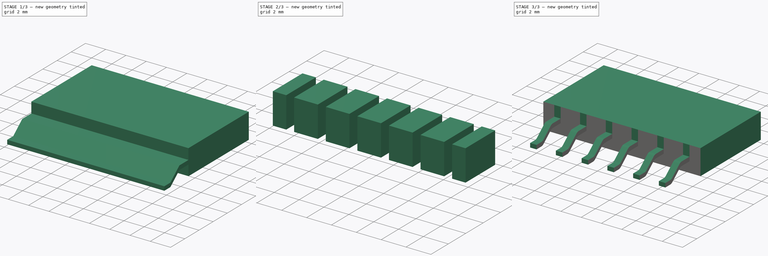
[diagram: build sequence overview — one tinted view per stage of 3, left to right]
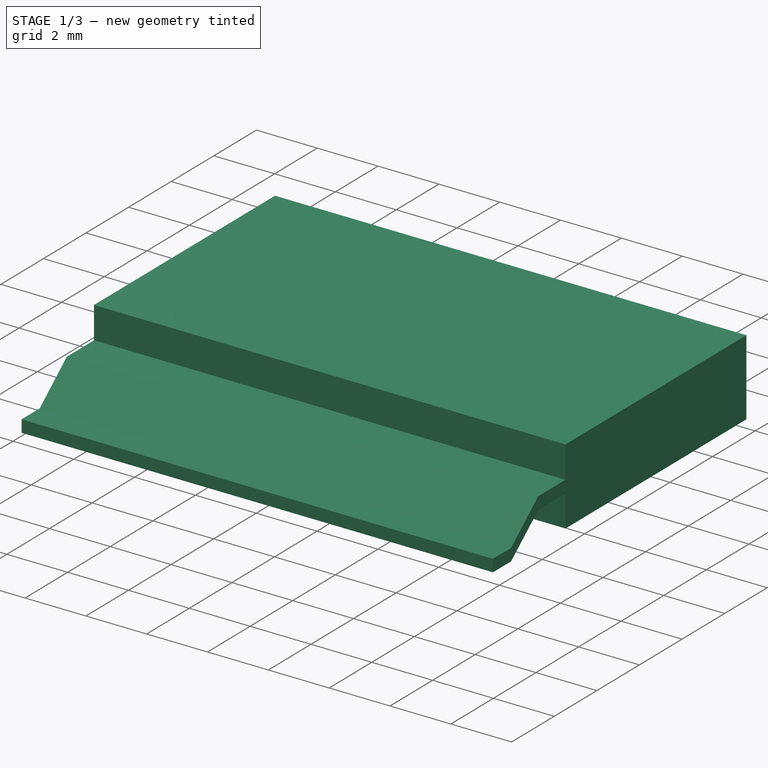
[diagram: stage 1 of 3 — iso view after this stage's code; geometry added in this stage tinted green]
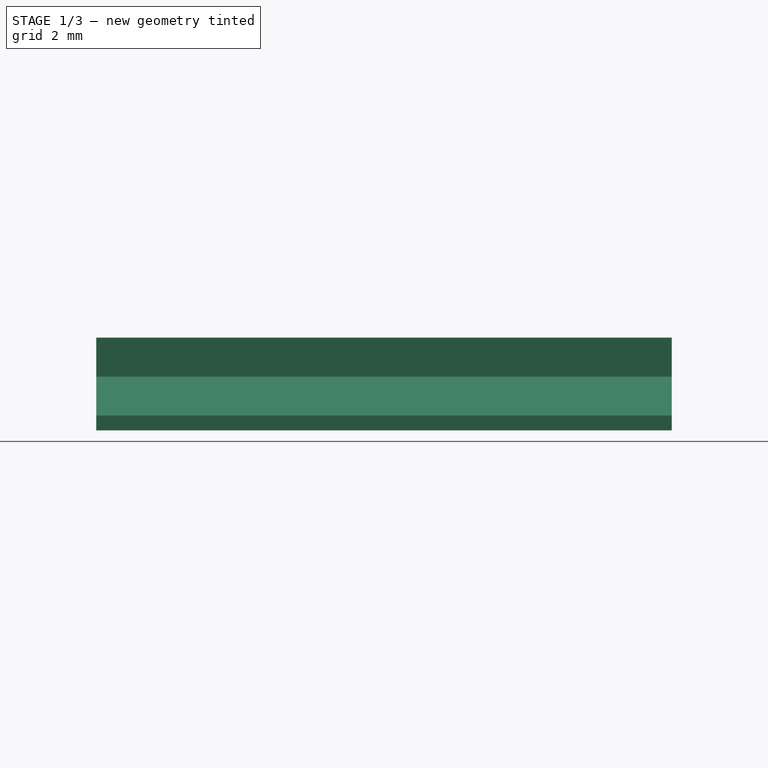
[diagram: stage 1 of 3 — front view after this stage's code; geometry added in this stage tinted green]
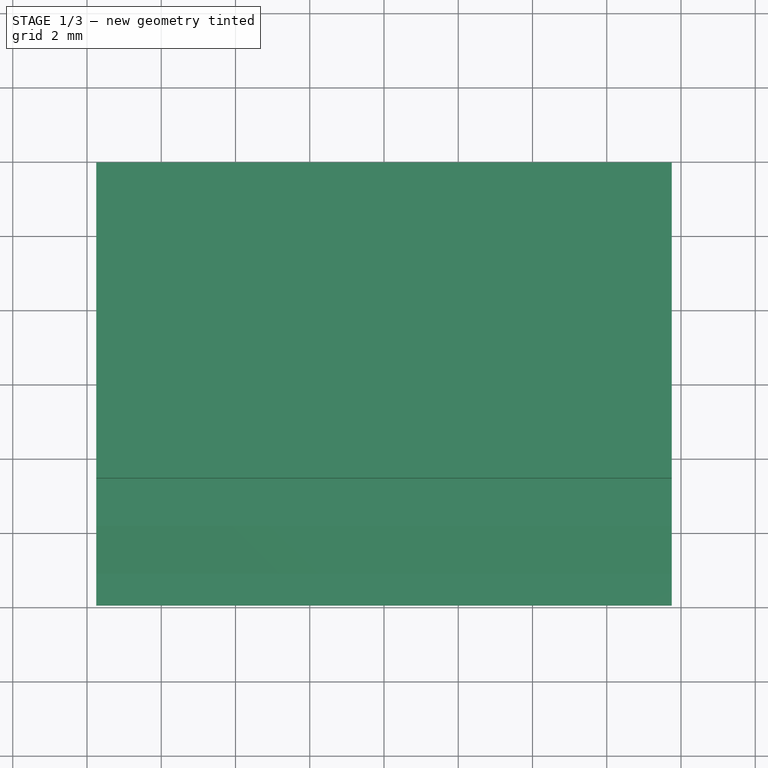
[diagram: stage 1 of 3 — top view after this stage's code; geometry added in this stage tinted green]
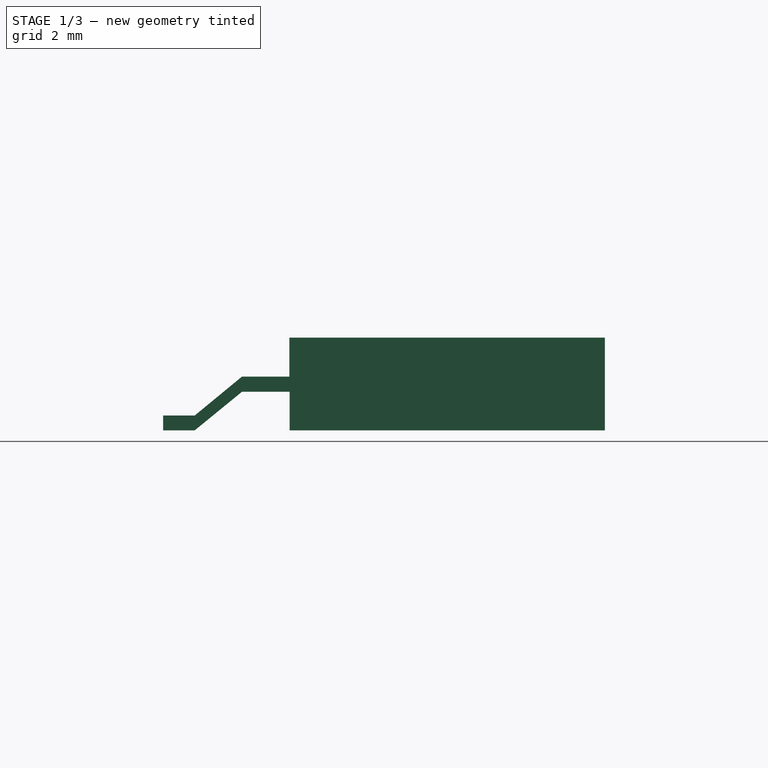
[diagram: stage 1 of 3 — right view after this stage's code; geometry added in this stage tinted green]
FCSTD DOCUMENT  (FreeCAD 0.17R13522 (Git))
Label: Header
License: All rights reserved
LicenseURL: http://en.wikipedia.org/wiki/All_rights_reserved
objects: Sketcher::SketchObject×4, Part::Extrusion×4, Part::Cut×3, Part::Fillet×1
note: 12 computed .brp shape members not serialized (recipe doc carries the construction recipe); baked Part::Feature solids carry a one-line shape summary decoded from their .brp

FEATURE [Sketcher::SketchObject] Sketch
  sketch-geometry (4):
    g0: LineSegment StartX=-7.75 StartY=5.95 StartZ=0 EndX=7.75 EndY=5.95 EndZ=0
    g1: LineSegment StartX=7.75 StartY=5.95 StartZ=0 EndX=7.75 EndY=-5.95 EndZ=0
    g2: LineSegment StartX=7.75 StartY=-5.95 StartZ=0 EndX=-7.75 EndY=-5.95 EndZ=0
    g3: LineSegment StartX=-7.75 StartY=-5.95 StartZ=0 EndX=-7.75 EndY=5.95 EndZ=0
  constraints (12):
    c: Coincident(g0,g1)
    c: Coincident(g1,g2)
    c: Coincident(g2,g3)
    c: Coincident(g3,g0)
    c: Horizontal(g0)
    c: Horizontal(g2)
    c: Vertical(g1)
    c: Vertical(g3)
    c: Distance(g0) = 15.5
    c: Distance(g3) = 11.9
    c: DistanceY(g-1,g0) = 5.95
    c: DistanceX(g-1,g1) = 7.75
FEATURE [Part::Extrusion] Extrude
  Base = -> Sketch
  Dir = (0,0,1)
  DirMode = 2
  FaceMakerClass = Part::FaceMakerBullseye
  LengthFwd = 2.5
  LengthRev = 0
  Solid = true
  Symmetric = false
FEATURE [Sketcher::SketchObject] Sketch001
  MapMode = 5
  Placement = pos=(7.75,0,0) rot=(0.57735,0.57735,0.57735;2.0944rad)
  Support = -> [Extrude]
  sketch-geometry (10):
    g0: LineSegment StartX=-2.55 StartY=2.5 StartZ=0 EndX=-5.95 EndY=2.5 EndZ=0
    g1: LineSegment StartX=-5.1 StartY=0.4 StartZ=0 EndX=-5.95 EndY=0.4 EndZ=0
    g2: LineSegment StartX=-2.54297 StartY=1.04065 StartZ=0 EndX=-3.825 EndY=1.04065 EndZ=0
    g3: LineSegment StartX=-3.825 StartY=1.45 StartZ=0 EndX=-2.55 EndY=1.45 EndZ=0
    g4: LineSegment StartX=-5.1 StartY=0.4 StartZ=0 EndX=-3.825 EndY=1.45 EndZ=0
    g5: LineSegment StartX=-3.825 StartY=1.04065 StartZ=0 EndX=-5.1 EndY=0 EndZ=0
    g6: LineSegment StartX=-5.95 StartY=2.5 StartZ=0 EndX=-5.95 EndY=0.4 EndZ=0
    g7: LineSegment StartX=-5.1 StartY=0 StartZ=0 EndX=-2.54297 EndY=0 EndZ=0
    g8: LineSegment StartX=-2.54297 StartY=1.04065 StartZ=0 EndX=-2.54297 EndY=0 EndZ=0
    g9: LineSegment StartX=-2.55 StartY=2.5 StartZ=0 EndX=-2.55 EndY=1.45 EndZ=0
  constraints (19):
    c: Horizontal(g0)
    c: Distance(g0) = 3.4
    c: Horizontal(g1)
    c: Distance(g1) = 0.85
    c: Horizontal(g2)
    c: Horizontal(g3)
    c: Distance(g3) = 1.275
    c: Coincident(g5,g2)
    c: Coincident(g6,g0)
    c: Coincident(g6,g1)
    c: Vertical(g6)
    c: Coincident(g7,g5)
    c: Horizontal(g7)
    c: Coincident(g8,g2)
    c: Coincident(g8,g7)
    c: Vertical(g8)
    c: Coincident(g9,g0)
    c: Coincident(g9,g3)
    c: Vertical(g9)
FEATURE [Part::Extrusion] Extrude001
  Base = -> Sketch001
  Dir = (1,0,0)
  DirMode = 2
  FaceMakerClass = Part::FaceMakerBullseye
  LengthFwd = 15.5
  LengthRev = 0
  Reversed = true
  Solid = true
  Symmetric = false
FEATURE [Part::Cut] Cut
  Base = -> Extrude
  Tool = -> Extrude001
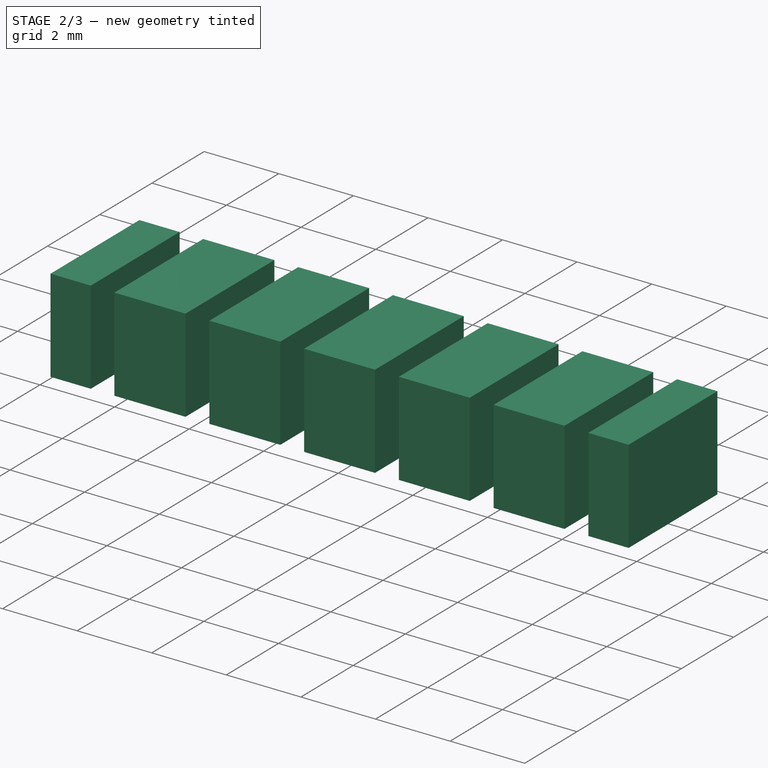
[diagram: stage 2 of 3 — iso view after this stage's code; geometry added in this stage tinted green]
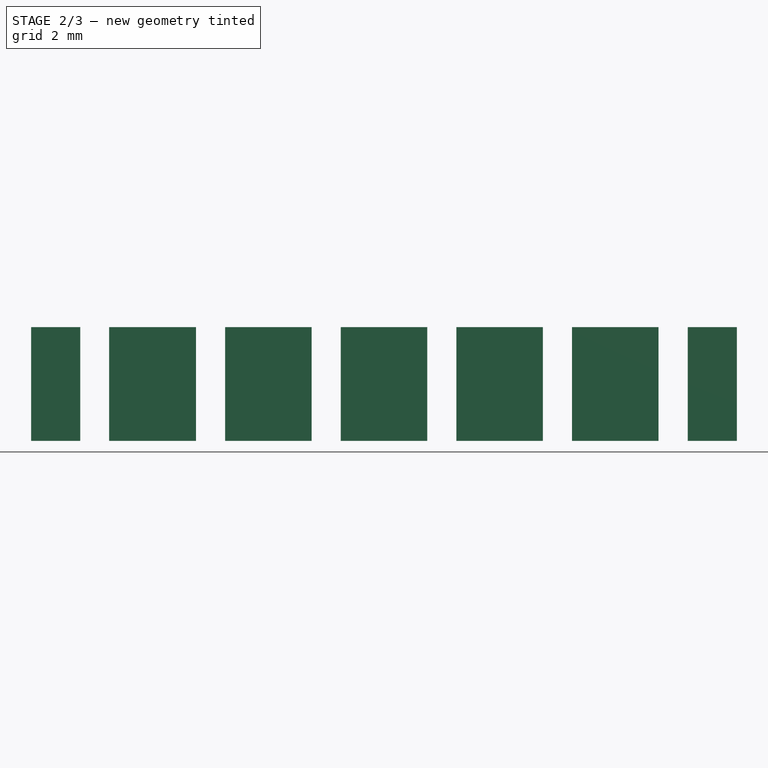
[diagram: stage 2 of 3 — front view after this stage's code; geometry added in this stage tinted green]
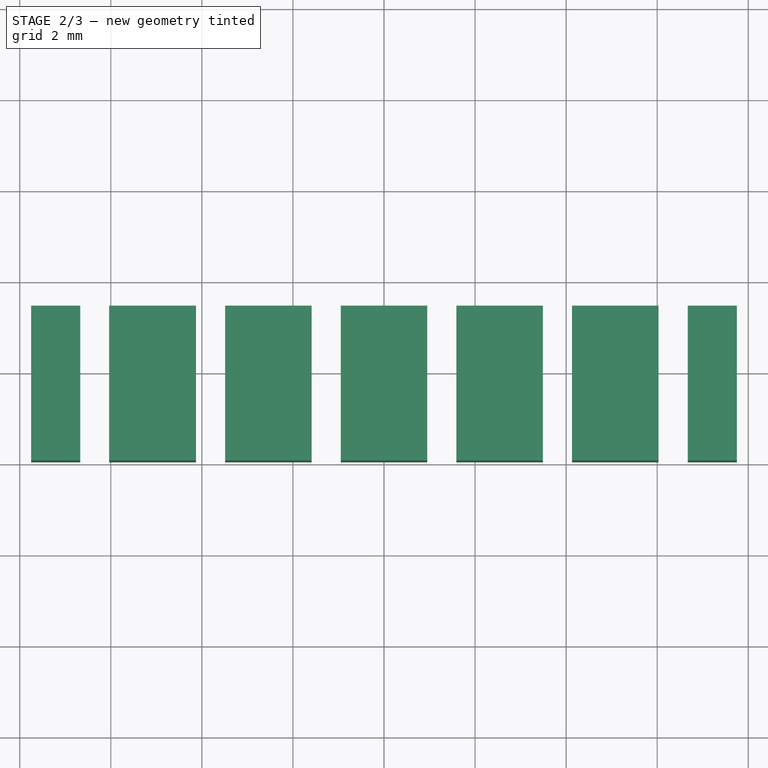
[diagram: stage 2 of 3 — top view after this stage's code; geometry added in this stage tinted green]
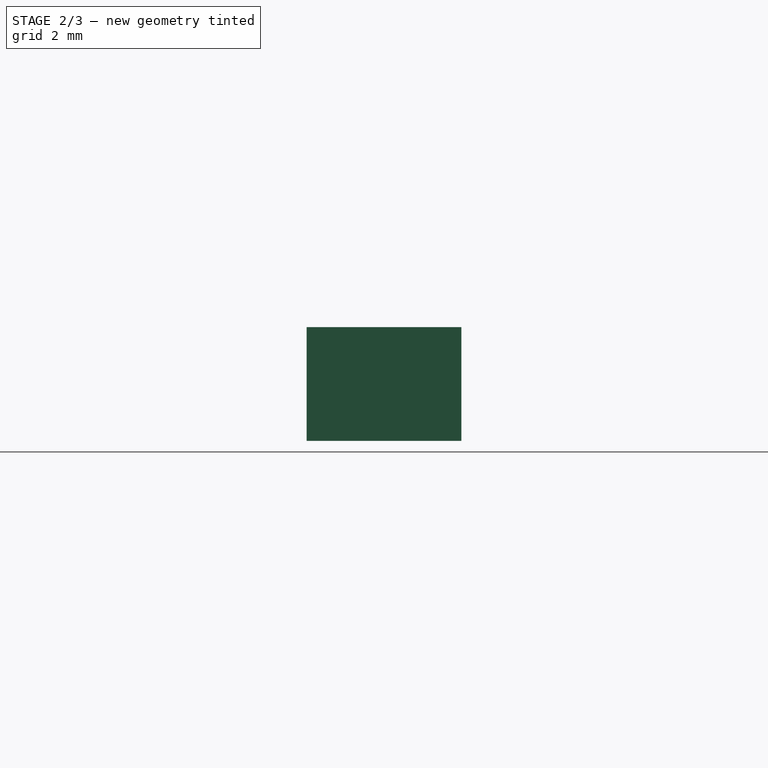
[diagram: stage 2 of 3 — right view after this stage's code; geometry added in this stage tinted green]
FEATURE [Part::Fillet] Fillet
  Base = -> Cut
  Edges = 4 edges r=0.5: [Edge29,Edge31,Edge34,Edge35]
FEATURE [Sketcher::SketchObject] Sketch002
  MapMode = 5
  Placement = pos=(0,0,2.5) rot=(0,0,1;0rad)
  Support = -> [Fillet]
  sketch-geometry (28):
    g0: LineSegment StartX=-1.59 StartY=-2.55 StartZ=0 EndX=-1.59 EndY=-5.95 EndZ=0
    g1: LineSegment StartX=-0.95 StartY=-5.95 StartZ=0 EndX=-0.95 EndY=-2.55 EndZ=0
    g2: LineSegment StartX=-4.13 StartY=-2.55 StartZ=0 EndX=-4.13 EndY=-5.95 EndZ=0
    g3: LineSegment StartX=-3.49 StartY=-5.95 StartZ=0 EndX=-3.49 EndY=-2.55 EndZ=0
    g4: LineSegment StartX=4.13 StartY=-2.55 StartZ=0 EndX=4.13 EndY=-5.95 EndZ=0
    g5: LineSegment StartX=3.49 StartY=-5.95 StartZ=0 EndX=3.49 EndY=-2.55 EndZ=0
    g6: LineSegment StartX=1.59 StartY=-2.55 StartZ=0 EndX=1.59 EndY=-5.95 EndZ=0
    g7: LineSegment StartX=0.95 StartY=-5.95 StartZ=0 EndX=0.95 EndY=-2.55 EndZ=0
    g8: LineSegment StartX=-6.67 StartY=-2.54873 StartZ=0 EndX=-6.67 EndY=-5.95 EndZ=0
    g9: LineSegment StartX=-6.03807 StartY=-5.95 StartZ=0 EndX=-6.03807 EndY=-2.55 EndZ=0
    g10: LineSegment StartX=6.67 StartY=-2.55 StartZ=0 EndX=6.67 EndY=-5.95 EndZ=0
    g11: LineSegment StartX=6.03 StartY=-5.95 StartZ=0 EndX=6.03 EndY=-2.55 EndZ=0
    g12: LineSegment StartX=7.75 StartY=-2.55 StartZ=0 EndX=7.75 EndY=-5.95 EndZ=0
    g13: LineSegment StartX=-7.75 StartY=-5.95 StartZ=0 EndX=-7.75 EndY=-2.54873 EndZ=0
    g14: LineSegment StartX=-7.75 StartY=-2.54873 StartZ=0 EndX=-6.67 EndY=-2.54873 EndZ=0
    g15: LineSegment StartX=-6.03807 StartY=-2.55 StartZ=0 EndX=-4.13 EndY=-2.55 EndZ=0
    g16: LineSegment StartX=-3.49 StartY=-2.55 StartZ=0 EndX=-1.59 EndY=-2.55 EndZ=0
    g17: LineSegment StartX=-0.95 StartY=-2.55 StartZ=0 EndX=0.95 EndY=-2.55 EndZ=0
    g18: LineSegment StartX=1.59 StartY=-2.55 StartZ=0 EndX=3.49 EndY=-2.55 EndZ=0
    g19: LineSegment StartX=4.13 StartY=-2.55 StartZ=0 EndX=6.03 EndY=-2.55 EndZ=0
    g20: LineSegment StartX=6.67 StartY=-2.55 StartZ=0 EndX=7.75 EndY=-2.55 EndZ=0
    g21: LineSegment StartX=7.75 StartY=-5.95 StartZ=0 EndX=6.67 EndY=-5.95 EndZ=0
    g22: LineSegment StartX=6.03 StartY=-5.95 StartZ=0 EndX=4.13 EndY=-5.95 EndZ=0
    g23: LineSegment StartX=3.49 StartY=-5.95 StartZ=0 EndX=1.59 EndY=-5.95 EndZ=0
    g24: LineSegment StartX=0.95 StartY=-5.95 StartZ=0 EndX=-0.95 EndY=-5.95 EndZ=0
    g25: LineSegment StartX=-1.59 StartY=-5.95 StartZ=0 EndX=-3.49 EndY=-5.95 EndZ=0
    g26: LineSegment StartX=-4.13 StartY=-5.95 StartZ=0 EndX=-6.03807 EndY=-5.95 EndZ=0
    g27: LineSegment StartX=-6.67 StartY=-5.95 StartZ=0 EndX=-7.75 EndY=-5.95 EndZ=0
  constraints (82):
    c: Vertical(g0)
    c: Vertical(g1)
    c: Vertical(g2)
    c: Vertical(g3)
    c: Vertical(g4)
    c: Vertical(g5)
    c: Vertical(g6)
    c: Vertical(g7)
    c: Vertical(g8)
    c: Vertical(g9)
    c: Vertical(g10)
    c: Vertical(g11)
    c: Vertical(g12)
    c: Vertical(g13)
    c: Distance(g12) = 3.4
    c: DistanceX(g0) = -1.59
    c: DistanceY(g0) = -2.55
    c: DistanceX(g1) = -0.95
    c: DistanceY(g1) = -2.55
    c: DistanceY(g0) = -5.95
    c: DistanceY(g1) = -5.95
    c: DistanceX(g7) = 0.95
    c: DistanceY(g7) = -2.55
    c: DistanceX(g6) = 1.59
    c: DistanceY(g6) = -2.55
    c: DistanceY(g7) = -5.95
    c: DistanceY(g6) = -5.95
    c: DistanceX(g5) = 3.49
    c: DistanceY(g5) = -2.55
    c: DistanceX(g4) = 4.13
    c: DistanceY(g4) = -2.55
    c: DistanceY(g5) = -5.95
    c: DistanceY(g4) = -5.95
    c: DistanceX(g11) = 6.03
    c: DistanceY(g11) = -2.55
    c: DistanceX(g10) = 6.67
    c: DistanceY(g10) = -2.55
    c: DistanceY(g11) = -5.95
    c: DistanceY(g10) = -5.95
    c: DistanceX(g8) = -6.67
    c: DistanceY(g8) = -2.54873
    c: DistanceX(g9) = -6.03807
    c: DistanceY(g8) = -5.95
    c: DistanceY(g9) = -5.95
    c: DistanceX(g2) = -4.13
    c: DistanceY(g2) = -2.55
    c: DistanceX(g3) = -3.49
    c: DistanceY(g3) = -2.55
    c: DistanceY(g2) = -5.95
    c: DistanceY(g3) = -5.95
    c: DistanceY(g12) = -2.55
    c: Coincident(g14,g13)
    c: Coincident(g14,g8)
    c: Horizontal(g14)
    c: Coincident(g15,g9)
    c: Coincident(g15,g2)
    c: Horizontal(g15)
    c: Coincident(g16,g3)
    c: Coincident(g16,g0)
    c: Coincident(g17,g1)
    c: Coincident(g17,g7)
    c: Coincident(g18,g6)
    c: Coincident(g18,g5)
    c: Coincident(g19,g4)
    c: Coincident(g19,g11)
    c: Coincident(g20,g10)
    c: Coincident(g20,g12)
    c: Coincident(g21,g12)
    c: Coincident(g21,g10)
    c: Coincident(g22,g11)
    c: Coincident(g22,g4)
    c: Coincident(g23,g5)
    c: Coincident(g23,g6)
    c: Coincident(g24,g7)
    c: Coincident(g24,g1)
    c: Coincident(g25,g0)
    c: Coincident(g25,g3)
    c: Coincident(g26,g2)
    c: Coincident(g26,g9)
    c: Coincident(g27,g8)
    c: Coincident(g27,g13)
    c: Horizontal(g27)
FEATURE [Part::Extrusion] Extrude002
  Base = -> Sketch002
  Dir = (0,0,1)
  DirMode = 2
  FaceMakerClass = Part::FaceMakerBullseye
  LengthFwd = 2.5
  LengthRev = 0
  Reversed = true
  Solid = true
  Symmetric = false
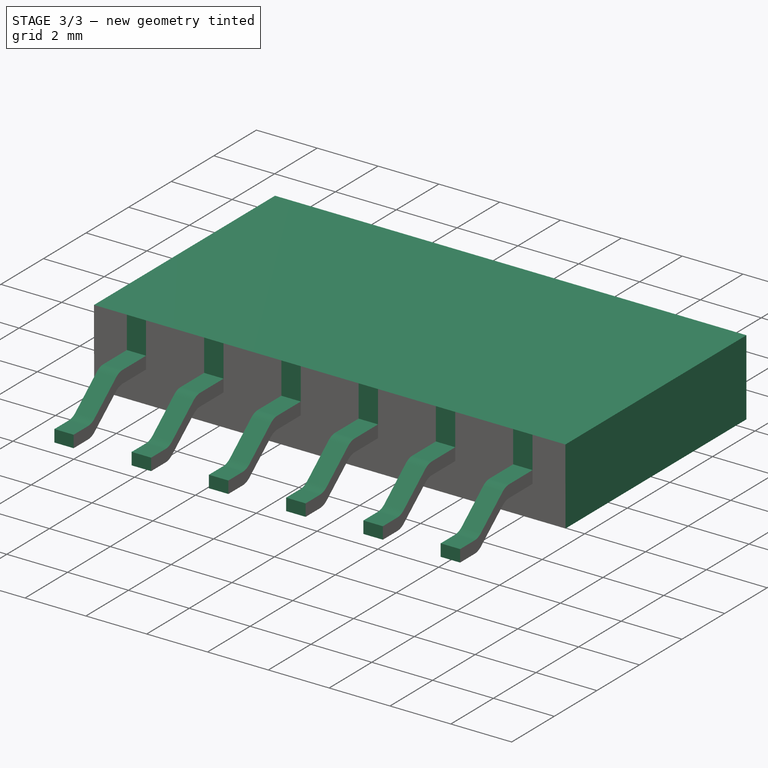
[diagram: stage 3 of 3 — iso view after this stage's code; geometry added in this stage tinted green]
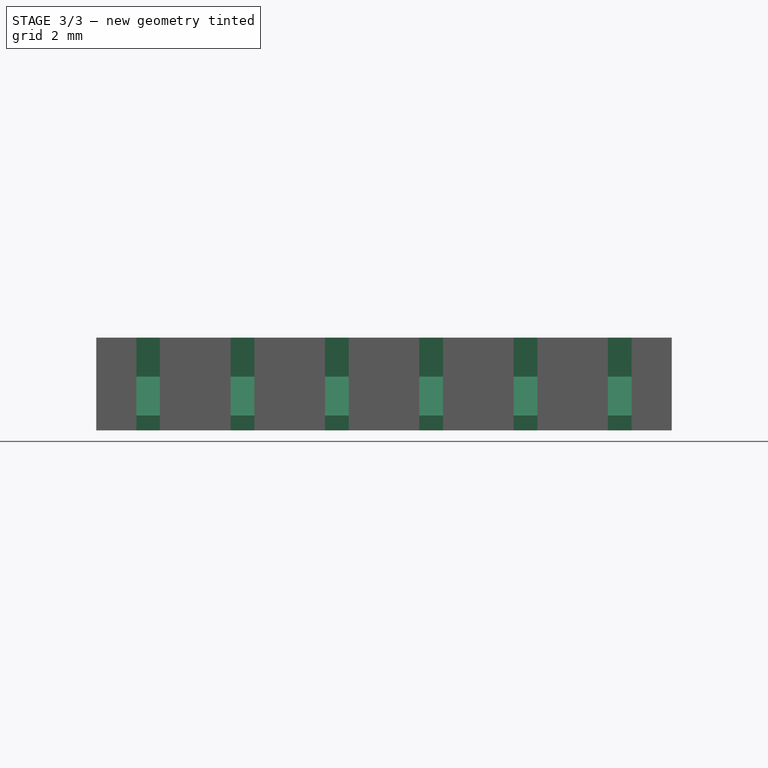
[diagram: stage 3 of 3 — front view after this stage's code; geometry added in this stage tinted green]
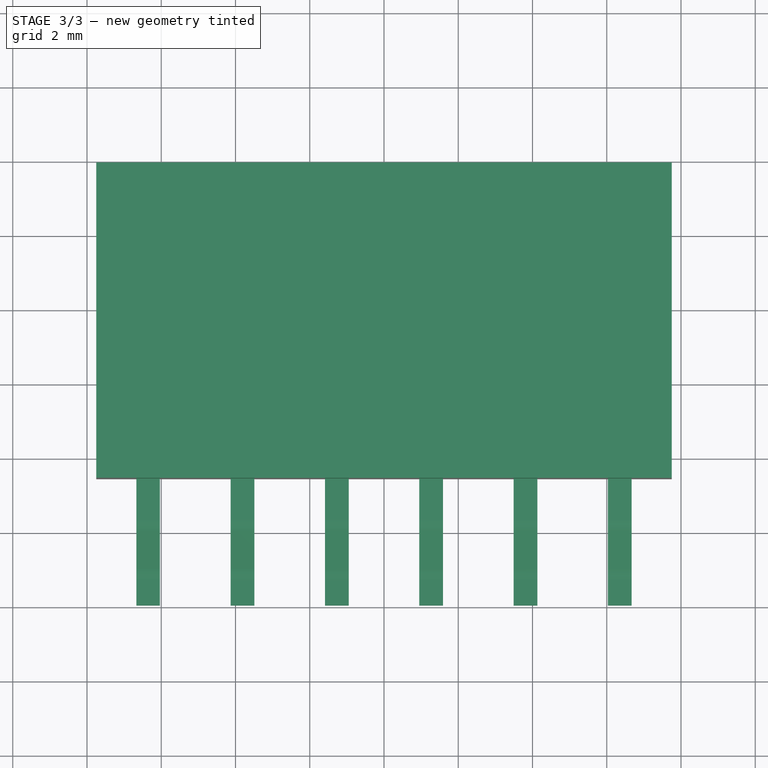
[diagram: stage 3 of 3 — top view after this stage's code; geometry added in this stage tinted green]
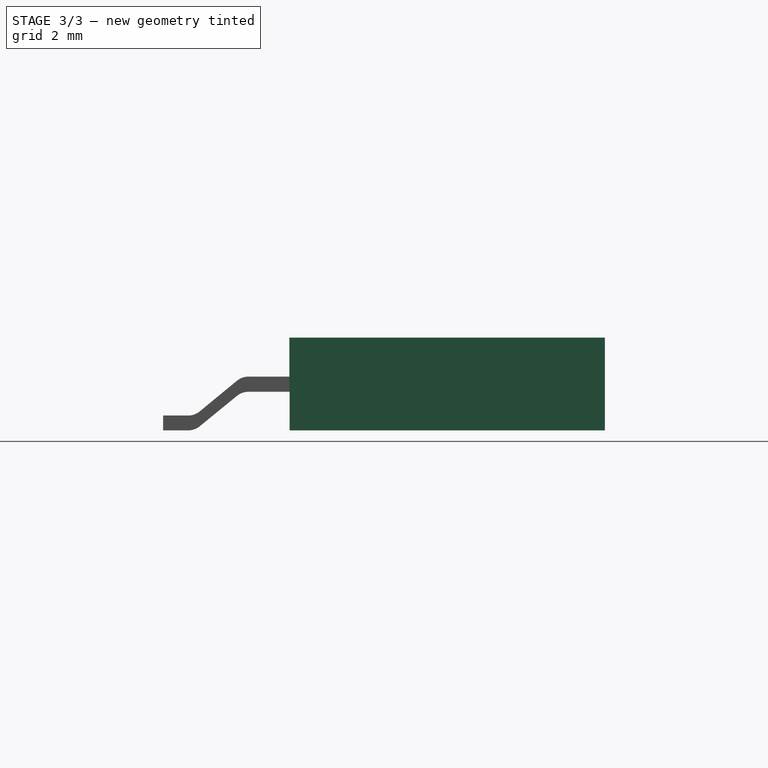
[diagram: stage 3 of 3 — right view after this stage's code; geometry added in this stage tinted green]
FEATURE [Part::Cut] Cut001
  Base = -> Fillet
  Tool = -> Extrude002
FEATURE [Sketcher::SketchObject] Sketch003
  MapMode = 5
  Placement = pos=(0,5.95,0) rot=(0,0.707107,0.707107;3.14159rad)
  Support = -> [Cut001]
  sketch-geometry (30):
    g0: LineSegment StartX=-0.47 StartY=2.05 StartZ=0 EndX=-2.07 EndY=2.05 EndZ=0
    g1: LineSegment StartX=-2.07 StartY=2.05 StartZ=0 EndX=-2.07 EndY=0.45 EndZ=0
    g2: LineSegment StartX=-2.07 StartY=0.45 StartZ=0 EndX=-0.47 EndY=0.45 EndZ=0
    g3: LineSegment StartX=-0.47 StartY=0.45 StartZ=0 EndX=-0.47 EndY=2.05 EndZ=0
    g4: Circle [constr] CenterX=-1.27 CenterY=1.25 CenterZ=0 NormalX=0 NormalY=0 NormalZ=1 AngleXU=0 Radius=1.13137
    g5: LineSegment StartX=2.07 StartY=2.05 StartZ=0 EndX=0.47 EndY=2.05 EndZ=0
    g6: LineSegment StartX=0.47 StartY=2.05 StartZ=0 EndX=0.47 EndY=0.45 EndZ=0
    g7: LineSegment StartX=0.47 StartY=0.45 StartZ=0 EndX=2.07 EndY=0.45 EndZ=0
    g8: LineSegment StartX=2.07 StartY=0.45 StartZ=0 EndX=2.07 EndY=2.05 EndZ=0
    g9: Circle [constr] CenterX=1.27 CenterY=1.25 CenterZ=0 NormalX=0 NormalY=0 NormalZ=1 AngleXU=0 Radius=1.13137
    g10: LineSegment StartX=4.61 StartY=2.05 StartZ=0 EndX=3.01 EndY=2.05 EndZ=0
    g11: LineSegment StartX=3.01 StartY=2.05 StartZ=0 EndX=3.01 EndY=0.45 EndZ=0
    g12: LineSegment StartX=3.01 StartY=0.45 StartZ=0 EndX=4.61 EndY=0.45 EndZ=0
    g13: LineSegment StartX=4.61 StartY=0.45 StartZ=0 EndX=4.61 EndY=2.05 EndZ=0
    g14: Circle [constr] CenterX=3.81 CenterY=1.25 CenterZ=0 NormalX=0 NormalY=0 NormalZ=1 AngleXU=0 Radius=1.13137
    g15: LineSegment StartX=7.15 StartY=2.05 StartZ=0 EndX=5.55 EndY=2.05 EndZ=0
    g16: LineSegment StartX=5.55 StartY=2.05 StartZ=0 EndX=5.55 EndY=0.45 EndZ=0
    g17: LineSegment StartX=5.55 StartY=0.45 StartZ=0 EndX=7.15 EndY=0.45 EndZ=0
    g18: LineSegment StartX=7.15 StartY=0.45 StartZ=0 EndX=7.15 EndY=2.05 EndZ=0
    g19: Circle [constr] CenterX=6.35 CenterY=1.25 CenterZ=0 NormalX=0 NormalY=0 NormalZ=1 AngleXU=0 Radius=1.13137
    g20: LineSegment StartX=-3.01 StartY=2.05 StartZ=0 EndX=-4.61 EndY=2.05 EndZ=0
    g21: LineSegment StartX=-4.61 StartY=2.05 StartZ=0 EndX=-4.61 EndY=0.45 EndZ=0
    g22: LineSegment StartX=-4.61 StartY=0.45 StartZ=0 EndX=-3.01 EndY=0.45 EndZ=0
    g23: LineSegment StartX=-3.01 StartY=0.45 StartZ=0 EndX=-3.01 EndY=2.05 EndZ=0
    g24: Circle [constr] CenterX=-3.81 CenterY=1.25 CenterZ=0 NormalX=0 NormalY=0 NormalZ=1 AngleXU=0 Radius=1.13137
    g25: LineSegment StartX=-5.55 StartY=2.05 StartZ=0 EndX=-7.15 EndY=2.05 EndZ=0
    g26: LineSegment StartX=-7.15 StartY=2.05 StartZ=0 EndX=-7.15 EndY=0.45 EndZ=0
    g27: LineSegment StartX=-7.15 StartY=0.45 StartZ=0 EndX=-5.55 EndY=0.45 EndZ=0
    g28: LineSegment StartX=-5.55 StartY=0.45 StartZ=0 EndX=-5.55 EndY=2.05 EndZ=0
    g29: Circle [constr] CenterX=-6.35 CenterY=1.25 CenterZ=0 NormalX=0 NormalY=0 NormalZ=1 AngleXU=0 Radius=1.13137
  constraints (78):
    c: Coincident(g0,g1)
    c: Coincident(g1,g2)
    c: Coincident(g2,g3)
    c: Coincident(g3,g0)
    c: Equal(g0,g1)
    c: Equal(g0,g2)
    c: Equal(g0,g3)
    c: PointOnObject(g0,g4)
    c: PointOnObject(g1,g4)
    c: PointOnObject(g2,g4)
    c: PointOnObject(g3,g4)
    c: Horizontal(g0)
    c: Distance(g0) = 1.6
    c: Coincident(g5,g6)
    c: Coincident(g6,g7)
    c: Coincident(g7,g8)
    c: Coincident(g8,g5)
    c: Equal(g5,g6)
    c: Equal(g5,g7)
    c: Equal(g5,g8)
    c: PointOnObject(g5,g9)
    c: PointOnObject(g6,g9)
    c: PointOnObject(g7,g9)
    c: PointOnObject(g8,g9)
    c: Horizontal(g5)
    c: Distance(g5) = 1.6
    c: Coincident(g10,g11)
    c: Coincident(g11,g12)
    c: Coincident(g12,g13)
    c: Coincident(g13,g10)
    c: Equal(g10,g11)
    c: Equal(g10,g12)
    c: Equal(g10,g13)
    c: PointOnObject(g10,g14)
    c: PointOnObject(g11,g14)
    c: PointOnObject(g12,g14)
    c: PointOnObject(g13,g14)
    c: Horizontal(g10)
    c: Distance(g10) = 1.6
    c: Coincident(g15,g16)
    c: Coincident(g16,g17)
    c: Coincident(g17,g18)
    c: Coincident(g18,g15)
    c: Equal(g15,g16)
    c: Equal(g15,g17)
    c: Equal(g15,g18)
    c: PointOnObject(g15,g19)
    c: PointOnObject(g16,g19)
    c: PointOnObject(g17,g19)
    c: PointOnObject(g18,g19)
    c: Horizontal(g15)
    c: Distance(g15) = 1.6
    c: Coincident(g20,g21)
    c: Coincident(g21,g22)
    c: Coincident(g22,g23)
    c: Coincident(g23,g20)
    c: Equal(g20,g21)
    c: Equal(g20,g22)
    c: Equal(g20,g23)
    c: PointOnObject(g20,g24)
    c: PointOnObject(g21,g24)
    c: PointOnObject(g22,g24)
    c: PointOnObject(g23,g24)
    c: Horizontal(g20)
    c: Distance(g20) = 1.6
    c: Coincident(g25,g26)
    c: Coincident(g26,g27)
    c: Coincident(g27,g28)
    c: Coincident(g28,g25)
    c: Equal(g25,g26)
    c: Equal(g25,g27)
    c: Equal(g25,g28)
    c: PointOnObject(g25,g29)
    c: PointOnObject(g26,g29)
    c: PointOnObject(g27,g29)
    c: PointOnObject(g28,g29)
    c: Horizontal(g25)
    c: Distance(g25) = 1.6
FEATURE [Part::Extrusion] Extrude003
  Base = -> Sketch003
  Dir = (0,1,0)
  DirMode = 2
  FaceMakerClass = Part::FaceMakerBullseye
  LengthFwd = 7
  LengthRev = 0
  Reversed = true
  Solid = true
  Symmetric = false
FEATURE [Part::Cut] Cut002
  Base = -> Cut001
  Tool = -> Extrude003
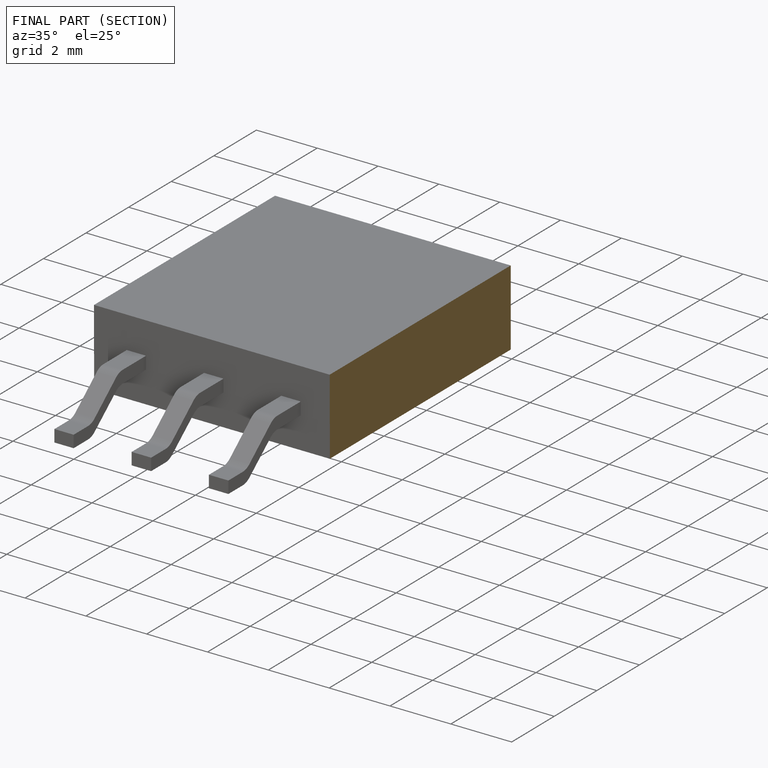
[diagram: finished part — half-section view (interior)]
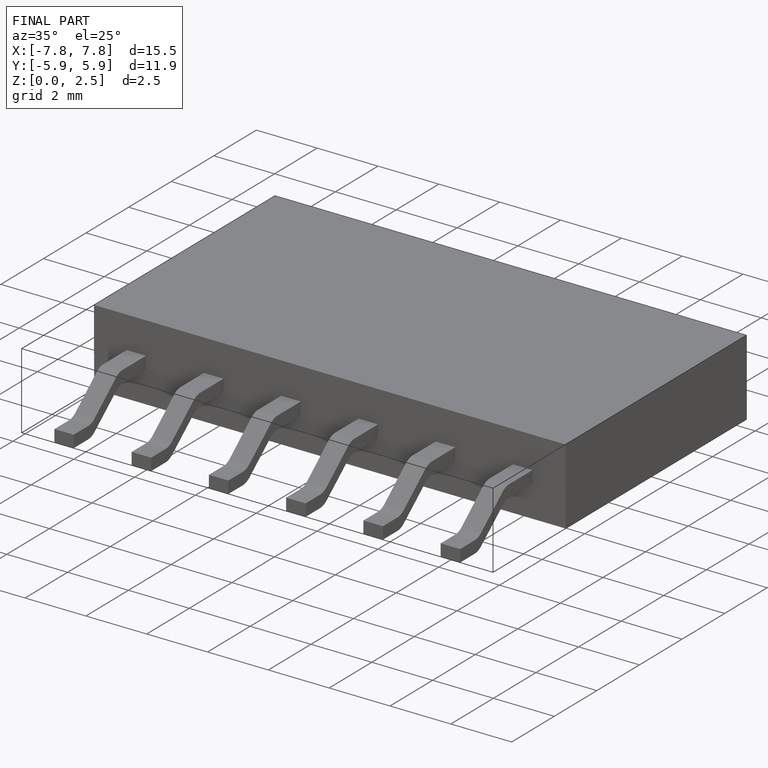
[diagram: finished part — iso view with bounding-box wireframe]
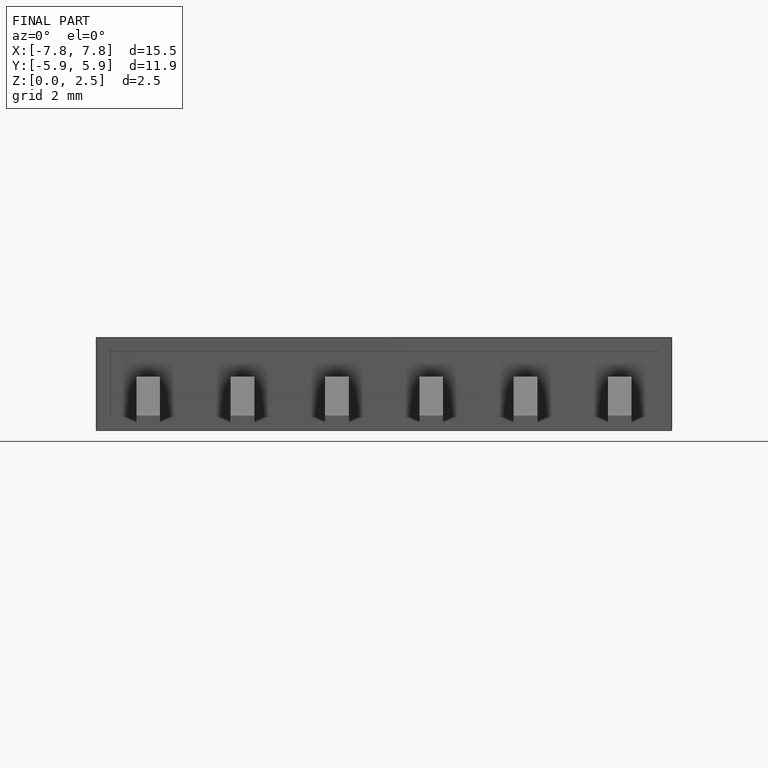
[diagram: finished part — front view with bounding-box wireframe]
